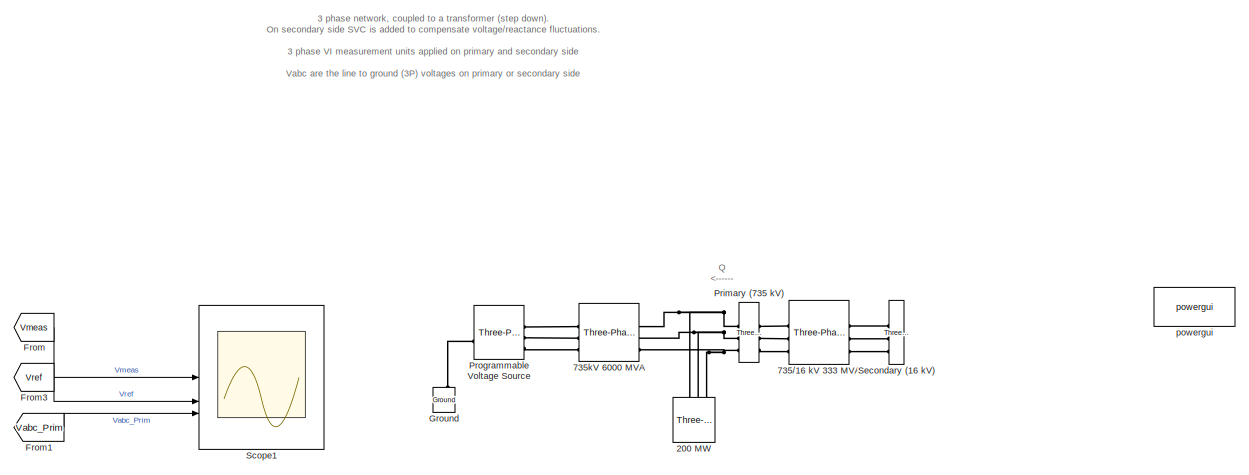
[diagram: root canvas - part 1/3, top center region]
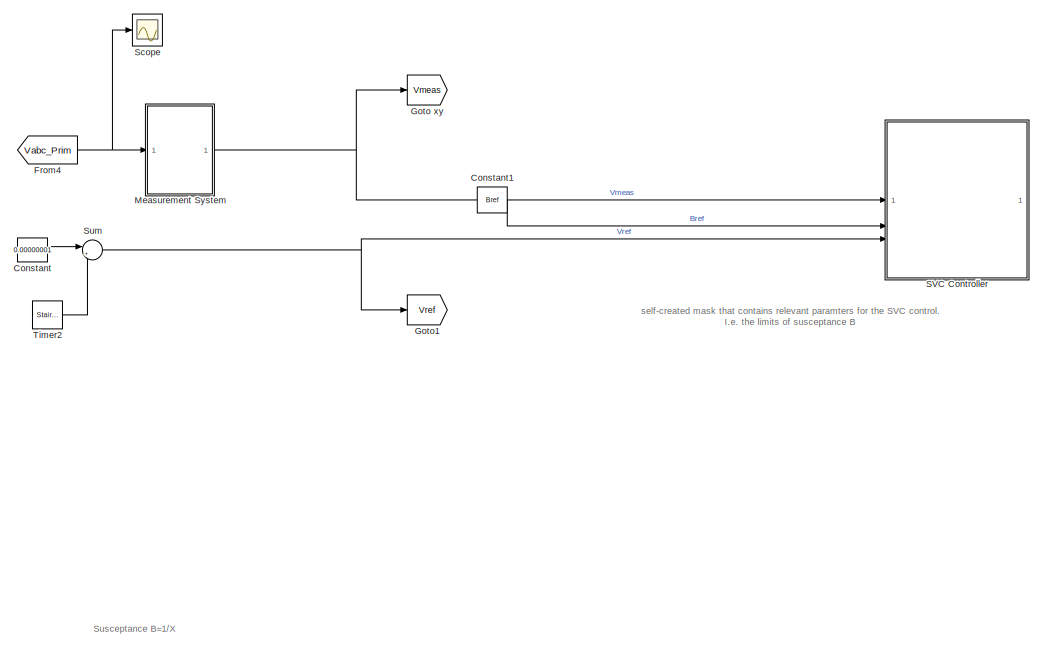
[diagram: root canvas - part 2/3, bottom right region]
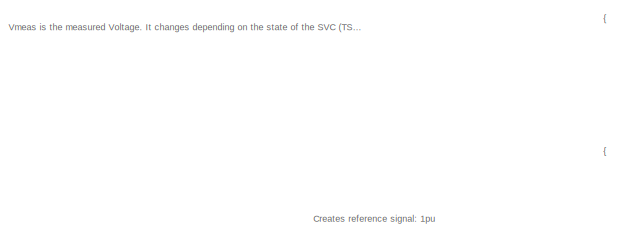
[diagram: root canvas - part 3/3, middle left region]
MODEL slx_26f8612f684e
KIND model
CONFIG AbsTol = auto
CONFIG EnableMultiTasking = off
CONFIG FixedStep = Ts
CONFIG MaxStep = auto
CONFIG MinStep = auto
CONFIG RelTol = 1e-3
CONFIG SampleTimeConstraint = Unconstrained
CONFIG SolverName = FixedStepDiscrete
CONFIG StartTime = 0.0
CONFIG StopTime = 0.6
WORKSPACE source: mxarray member
WORKSPACE Bcap: Simulink.Parameter (value not decoded)
WORKSPACE Bind: Simulink.Parameter (value not decoded)
WORKSPACE Bmax: Simulink.Parameter (value not decoded)
WORKSPACE Bmin: Simulink.Parameter (value not decoded)
WORKSPACE Bmmin_max = 0
WORKSPACE Bref = 0
WORKSPACE Ki: Simulink.Parameter (value not decoded)
WORKSPACE Kp: Simulink.Parameter (value not decoded)
WORKSPACE KpKi = 0
WORKSPACE OpMode = 1
WORKSPACE Ts = 5e-05
WORKSPACE Vref = 0
WORKSPACE Xs = 0
BLOCK [Reference] 200 MW  REF=spsThreePhaseSeriesRLCLoadLib/Three-Phase
Series RLC Load
  AttributesFormatString = \n
  NameLocation = left
  SourceBlock = spsThreePhaseSeriesRLCLoadLib/Three-Phase\nSeries RLC Load
  SourceType = Three-Phase Series RLC Load
BLOCK [Reference] 735//16 kV 333 MVA  REF=spsThreePhaseTransformerTwoWindingsLib/Three-Phase
Transformer
(Two Windings)
  AttributesFormatString = \n
  SourceBlock = spsThreePhaseTransformerTwoWindingsLib/Three-Phase\nTransformer\n(Two Windings)
  SourceType = Three-Phase Transformer (Two Windings)
BLOCK [Reference] 735kV 6000 MVA   REF=spsThreePhaseSeriesRLCBranchLib/Three-Phase
Series RLC Branch
  AttributesFormatString = \n
  SourceBlock = spsThreePhaseSeriesRLCBranchLib/Three-Phase\nSeries RLC Branch
  SourceType = Three-Phase Series RLC Branch
BLOCK [Constant] Constant
  Value = 0.00000001
BLOCK [Constant] Constant1
  Value = Bref
BLOCK [From] From
  GotoTag = Vmeas
  TagVisibility = global
BLOCK [From] From1
  GotoTag = Vabc_Prim
  TagVisibility = global
BLOCK [From] From3
  GotoTag = Vref
BLOCK [From] From4
  GotoTag = Vabc_Prim
  TagVisibility = global
BLOCK [Goto] Goto xy
  GotoTag = Vmeas
  TagVisibility = global
BLOCK [Goto] Goto1
  GotoTag = Vref
BLOCK [Reference] Ground  REF=spsGroundLib/Ground
  LibrarySourceBlock = sps_lib/Utilities/Ground
  NameLocation = right
  SourceBlock = spsGroundLib/Ground
  SourceType = Ground
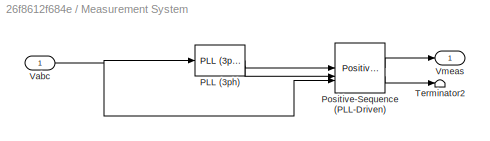
BLOCK [SubSystem] Measurement System
BLOCK [Reference] Measurement System/PLL (3ph)  REF=spsPLL3phLib/PLL
(3ph)
  SourceBlock = spsPLL3phLib/PLL\n(3ph)
  SourceType = PLL (3ph)
BLOCK [Reference] Measurement System/Positive-Sequence (PLL-Driven)  REF=spsPositiveSequencePLLDrivenLib/Positive-Sequence
(PLL-Driven)
  SourceBlock = spsPositiveSequencePLLDrivenLib/Positive-Sequence\n(PLL-Driven)
  SourceType = Positive-Sequence (PLL-Driven)
BLOCK [Terminator] Measurement System/Terminator2
BLOCK [Inport] Measurement System/Vabc
  PortDimensions = 3
BLOCK [Outport] Measurement System/Vmeas
  VectorParamsAs1DForOutWhenUnconnected = off
BLOCK [Reference] Primary (735 kV)  REF=spsThreePhaseVIMeasurementLib/Three-Phase
V-I Measurement
  SourceBlock = spsThreePhaseVIMeasurementLib/Three-Phase\nV-I Measurement
  SourceType = Three-Phase VI Measurement
BLOCK [Reference] Programmable Voltage Source  REF=spsThreePhaseProgrammableVoltageSourceLib/Three-Phase
Programmable
Voltage Source
  SourceBlock = spsThreePhaseProgrammableVoltageSourceLib/Three-Phase\nProgrammable\nVoltage Source
  SourceType = Three-Phase Programmable Voltage Source
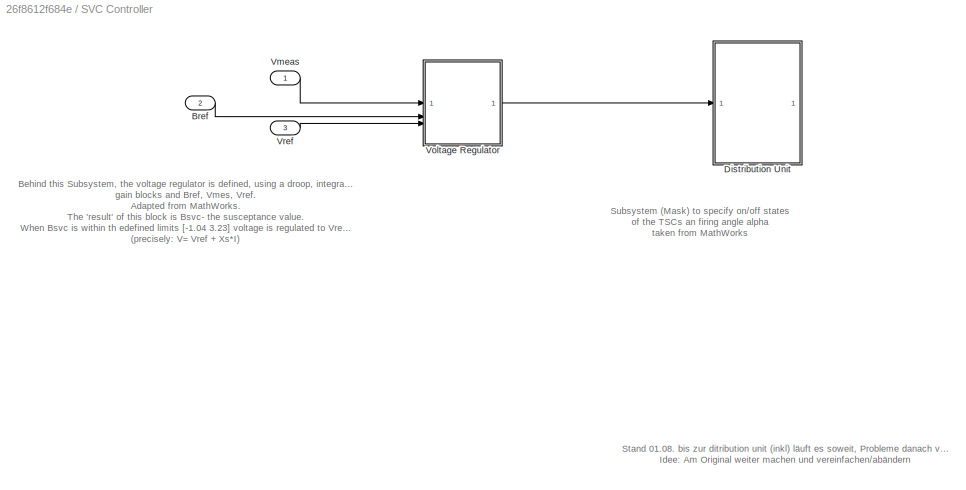
BLOCK [SubSystem] SVC Controller
  ShowPortLabels = SignalName
BLOCK [Inport] SVC Controller/Bref
  Port = 2
  PortDimensions = 1
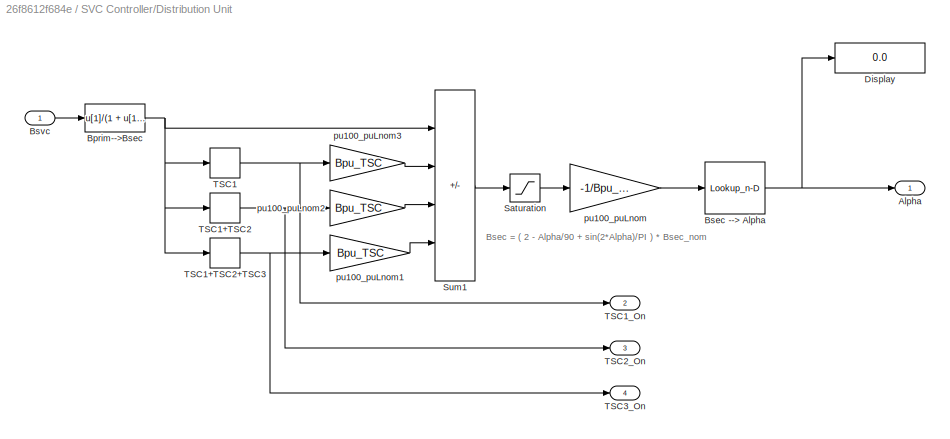
BLOCK [SubSystem] SVC Controller/Distribution Unit
BLOCK [Outport] SVC Controller/Distribution Unit/Alpha
  InitialOutput = 0
  VectorParamsAs1DForOutWhenUnconnected = off
BLOCK [Fcn] SVC Controller/Distribution Unit/Bprim-->Bsec
  Expr = u[1]/(1 + u[1]*Xf_xfo*100e6/Pnom_xfo)
BLOCK [Lookup_n-D] SVC Controller/Distribution Unit/Bsec --> Alpha
  BreakpointsForDimension1 = B
  BreakpointsForDimension2 = [0 571.55 685.8 800.15 914.4 1028.8 1143.1 1257.4 1371.7 1486 1600.3 1714.6 1828.9 1943.2 2057.5 2171.8 2286.1 2400.5 2514.7 2629.1 2743.3 2857.7 2971.9 3086.3 3200.5 3314.9 3429.2]
  InputPortMap = u0
  InternalRulePriority = Speed
  NumberOfTableDimensions = 1
  RndMeth = Simplest
  Table = A
BLOCK [Inport] SVC Controller/Distribution Unit/Bsvc
  PortDimensions = 1
BLOCK [Display] SVC Controller/Distribution Unit/Display
  Decimation = 1
BLOCK [Saturate] SVC Controller/Distribution Unit/Saturation
  LowerLimit = Bpu_TCR
  UpperLimit = 0
BLOCK [Sum] SVC Controller/Distribution Unit/Sum1
  IconShape = rectangular
  InputSameDT = on
  Inputs = +---
  OutDataTypeStr = Inherit: Same as first input
  SaturateOnIntegerOverflow = on
BLOCK [Relay] SVC Controller/Distribution Unit/TSC1
  OffSwitchValue = -1 * hyst_svc
  OnSwitchValue = 0
BLOCK [Relay] SVC Controller/Distribution Unit/TSC1+TSC2
  OffSwitchValue = -1 * hyst_svc + Bpu_TSC
  OnSwitchValue = 0+ Bpu_TSC
BLOCK [Relay] SVC Controller/Distribution Unit/TSC1+TSC2+TSC3
  OffSwitchValue = -1 * hyst_svc + 2*Bpu_TSC
  OnSwitchValue = 0+ 2*Bpu_TSC
BLOCK [Outport] SVC Controller/Distribution Unit/TSC1_On
  InitialOutput = 0
  Port = 2
  VectorParamsAs1DForOutWhenUnconnected = off
BLOCK [Outport] SVC Controller/Distribution Unit/TSC2_On
  InitialOutput = 0
  Port = 3
  VectorParamsAs1DForOutWhenUnconnected = off
BLOCK [Outport] SVC Controller/Distribution Unit/TSC3_On
  InitialOutput = 0
  Port = 4
  VectorParamsAs1DForOutWhenUnconnected = off
BLOCK [Gain] SVC Controller/Distribution Unit/pu100_puLnom
  Gain = -1/Bpu_TCR
  OutDataTypeStr = Inherit: Same as input
  ParamDataTypeStr = Inherit: Same as input
  SaturateOnIntegerOverflow = on
BLOCK [Gain] SVC Controller/Distribution Unit/pu100_puLnom1
  Gain = Bpu_TSC
  OutDataTypeStr = Inherit: Same as input
  ParamDataTypeStr = Inherit: Same as input
  SaturateOnIntegerOverflow = on
BLOCK [Gain] SVC Controller/Distribution Unit/pu100_puLnom2
  Gain = Bpu_TSC
  OutDataTypeStr = Inherit: Same as input
  ParamDataTypeStr = Inherit: Same as input
  SaturateOnIntegerOverflow = on
BLOCK [Gain] SVC Controller/Distribution Unit/pu100_puLnom3
  Gain = Bpu_TSC
  OutDataTypeStr = Inherit: Same as input
  ParamDataTypeStr = Inherit: Same as input
  SaturateOnIntegerOverflow = on
BLOCK [Inport] SVC Controller/Vmeas
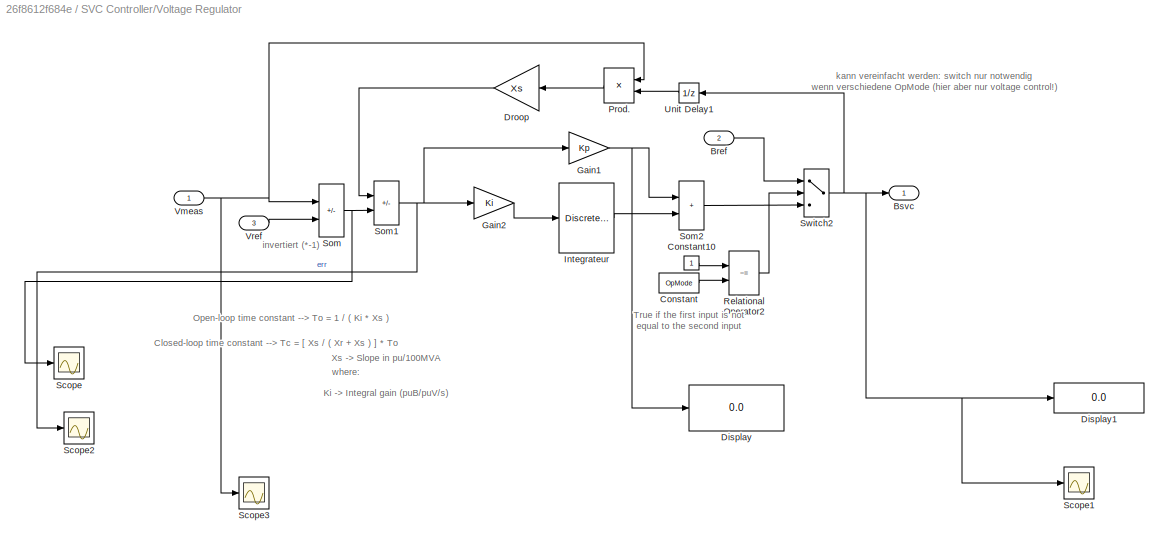
BLOCK [SubSystem] SVC Controller/Voltage Regulator
BLOCK [Inport] SVC Controller/Voltage Regulator/Bref
  Port = 2
  PortDimensions = 1
BLOCK [Outport] SVC Controller/Voltage Regulator/Bsvc
  InitialOutput = 0
  VectorParamsAs1DForOutWhenUnconnected = off
BLOCK [Constant] SVC Controller/Voltage Regulator/Constant
  Value = OpMode
BLOCK [Constant] SVC Controller/Voltage Regulator/Constant10
BLOCK [Display] SVC Controller/Voltage Regulator/Display
  Decimation = 1
BLOCK [Display] SVC Controller/Voltage Regulator/Display1
  Decimation = 1
  Format = long
BLOCK [Gain] SVC Controller/Voltage Regulator/Droop
  Gain = Xs
  NameLocation = top
  OutDataTypeStr = Inherit: Same as input
  ParamDataTypeStr = Inherit: Same as input
  SaturateOnIntegerOverflow = on
BLOCK [Gain] SVC Controller/Voltage Regulator/Gain1
  Gain = Kp
  OutDataTypeStr = Inherit: Same as input
  ParamDataTypeStr = Inherit: Same as input
  SaturateOnIntegerOverflow = on
BLOCK [Gain] SVC Controller/Voltage Regulator/Gain2
  Gain = Ki
  OutDataTypeStr = Inherit: Same as input
  ParamDataTypeStr = Inherit: Same as input
  SaturateOnIntegerOverflow = on
BLOCK [DiscreteIntegrator] SVC Controller/Voltage Regulator/Integrateur
  ICPrevOutput = DiscIntNeverNeededParam
  ICPrevScaledInput = DiscIntNeverNeededParam
  LimitOutput = on
  LowerSaturationLimit = Bind
  NameLocation = top
  SampleTime = Ts
  UpperSaturationLimit = Bcap
BLOCK [Product] SVC Controller/Voltage Regulator/Prod.
  InputSameDT = on
  OutDataTypeStr = Inherit: Same as first input
  SaturateOnIntegerOverflow = on
BLOCK [RelationalOperator] SVC Controller/Voltage Regulator/Relational Operator2
  Operator = ~=
BLOCK [Scope] SVC Controller/Voltage Regulator/Scope
  Floating = off
  NumInputPorts = 1
  ScopeSpecificationString = Simulink.scopes.TimeScopeBlockCfg('CurrentConfiguration', extmgr.ConfigurationSet(extmgr.Configuration('Core','General UI',true),extmgr.Configuration('Core','Source UI',true),extmgr.Configuration('Sources','WiredSimulink',true,'DataLoggingVariableName','ScopeData1'),extmgr.Configuration('Visuals','Time Domain',true,'SerializedDisplays',{struct('MinYLimReal','-0.03686','MaxYLimReal','0.08189','YLab...<+1486ch>
BLOCK [Scope] SVC Controller/Voltage Regulator/Scope1
  Floating = off
  NumInputPorts = 1
  ScopeSpecificationString = Simulink.scopes.TimeScopeBlockCfg('CurrentConfiguration', extmgr.ConfigurationSet(extmgr.Configuration('Core','General UI',true),extmgr.Configuration('Core','Source UI',true),extmgr.Configuration('Sources','WiredSimulink',true,'DataLoggingVariableName','ScopeData4'),extmgr.Configuration('Visuals','Time Domain',true,'SerializedDisplays',{struct('MinYLimReal','-1.57375','MaxYLimReal','3.76375','YLab...<+1455ch>
BLOCK [Scope] SVC Controller/Voltage Regulator/Scope2
  Floating = off
  NumInputPorts = 1
  ScopeSpecificationString = Simulink.scopes.TimeScopeBlockCfg('CurrentConfiguration', extmgr.ConfigurationSet(extmgr.Configuration('Core','General UI',true),extmgr.Configuration('Core','Source UI',true),extmgr.Configuration('Sources','WiredSimulink',true,'DataLoggingVariableName','ScopeData2'),extmgr.Configuration('Visuals','Time Domain',true,'SerializedDisplays',{struct('MinYLimReal','-0.03572','MaxYLimReal','0.08793','YLab...<+1486ch>
BLOCK [Scope] SVC Controller/Voltage Regulator/Scope3
  Floating = off
  NumInputPorts = 1
  ScopeSpecificationString = Simulink.scopes.TimeScopeBlockCfg('CurrentConfiguration', extmgr.ConfigurationSet(extmgr.Configuration('Core','General UI',true),extmgr.Configuration('Core','Source UI',true),extmgr.Configuration('Sources','WiredSimulink',true,'DataLoggingVariableName','ScopeData4'),extmgr.Configuration('Visuals','Time Domain',true,'SerializedDisplays',{struct('MinYLimReal','0.91811','MaxYLimReal','1.03686','YLabe...<+1451ch>
BLOCK [Sum] SVC Controller/Voltage Regulator/Som
  IconShape = rectangular
  InputSameDT = on
  Inputs = -+
  OutDataTypeStr = Inherit: Same as first input
  SaturateOnIntegerOverflow = on
BLOCK [Sum] SVC Controller/Voltage Regulator/Som1
  IconShape = rectangular
  InputSameDT = on
  Inputs = -+
  OutDataTypeStr = Inherit: Same as first input
  SaturateOnIntegerOverflow = on
BLOCK [Sum] SVC Controller/Voltage Regulator/Som2
  IconShape = rectangular
  InputSameDT = on
  OutDataTypeStr = Inherit: Same as first input
  SaturateOnIntegerOverflow = on
BLOCK [Switch] SVC Controller/Voltage Regulator/Switch2
  Criteria = u2 > Threshold
BLOCK [UnitDelay] SVC Controller/Voltage Regulator/Unit Delay1
  HasFrameUpgradeWarning = on
  SampleTime = Ts
BLOCK [Inport] SVC Controller/Voltage Regulator/Vmeas
  PortDimensions = 1
BLOCK [Inport] SVC Controller/Voltage Regulator/Vref
  Port = 3
BLOCK [Inport] SVC Controller/Vref
  Port = 3
BLOCK [Scope] Scope
  Floating = off
  NumInputPorts = 1
  ScopeSpecificationString = Simulink.scopes.TimeScopeBlockCfg('CurrentConfiguration', extmgr.ConfigurationSet(extmgr.Configuration('Core','General UI',true),extmgr.Configuration('Core','Source UI',true),extmgr.Configuration('Sources','WiredSimulink',true,'DataLoggingVariableName','ScopeData1'),extmgr.Configuration('Visuals','Time Domain',true,'SerializedDisplays',{struct('MinYLimReal','-1.28123','MaxYLimReal','1.28123','YLab...<+1583ch>
BLOCK [Scope] Scope1
  Floating = off
  NumInputPorts = 3
  ScopeSpecificationString = Simulink.scopes.TimeScopeBlockCfg('CurrentConfiguration', extmgr.ConfigurationSet(extmgr.Configuration('Core','General UI',true),extmgr.Configuration('Core','Source UI',true),extmgr.Configuration('Sources','WiredSimulink',true,'DataLoggingVariableName','ScopeData1'),extmgr.Configuration('Visuals','Time Domain',true,'SerializedDisplays',{struct('MinYLimReal','0.91811','MaxYLimReal','1.03686','YLabe...<+2259ch>
BLOCK [Reference] Secondary (16 kV)  REF=spsThreePhaseVIMeasurementLib/Three-Phase
V-I Measurement
  SourceBlock = spsThreePhaseVIMeasurementLib/Three-Phase\nV-I Measurement
  SourceType = Three-Phase VI Measurement
BLOCK [Sum] Sum
  Inputs = |++
  SaturateOnIntegerOverflow = on
BLOCK [Reference] Timer2  REF=spsStairGeneratorLib/Stair
Generator
  SourceBlock = spsStairGeneratorLib/Stair\nGenerator
  SourceType = Stair Generator
BLOCK [Reference] powergui  REF=sps_lib/powergui
  LibrarySourceBlock = sps_lib/powergui
  Priority = 1
  SourceBlock = sps_lib/powergui
  SourceType = PSB option menu block
ANNOTATION (root): 3 phase network, coupled to a transformer (step down). On secondary side SVC is added to compensate voltage/reactance fluctuations. 3 phase VI measurement units applied on primary and secondary side Vabc are the line to ground (3P) voltages on primary or secondary side
ANNOTATION (root): {
ANNOTATION (root): Creates reference signal: 1pu
ANNOTATION (root): Vmeas is the measured Voltage. It changes depending on the state of the SVC (TSC/TCR conducting?) and the "input" voltage (Vabc_Prim), which is changing twice and forces the SVC to "react" and go to a different operating point. Two voltage changes are defined within the programmable voltage source!
ANNOTATION (root): Q <------
ANNOTATION (root): Susceptance B=1/X
ANNOTATION (root): self-created mask that contains relevant paramters for the SVC control. I.e. the limits of susceptance B
ANNOTATION SVC Controller: Stand 01.08. bis zur ditribution unit (inkl) läuft es soweit, Probleme danach v.a mit Datentypen Idee: Am Original weiter machen und vereinfachen/abändern
ANNOTATION SVC Controller: Behind this Subsystem, the voltage regulator is defined, using a droop, integrator, gain blocks and Bref, Vmes, Vref. Adapted from MathWorks. The 'result' of this block is Bsvc- the susceptance value. When Bsvc is within th edefined limits [-1.04 3.23] voltage is regulated to Vref (precisely: V= Vref + Xs*I)
ANNOTATION SVC Controller: Subsystem (Mask) to specify on/off states of the TSCs an firing angle alpha taken from MathWorks
ANNOTATION SVC Controller/Distribution Unit: Bsec = ( 2 - Alpha/90 + sin(2*Alpha)/PI ) * Bsec_nom
ANNOTATION SVC Controller/Voltage Regulator: True if the first input is not equal to the second input
ANNOTATION SVC Controller/Voltage Regulator: Closed-loop time constant --> Tc = [ Xs / ( Xr + Xs ) ] * To
ANNOTATION SVC Controller/Voltage Regulator: Open-loop time constant --> To = 1 / ( Ki * Xs )
ANNOTATION SVC Controller/Voltage Regulator: Xs -> Slope in pu/100MVA Ki -> Integral gain (puB/puV/s)
ANNOTATION SVC Controller/Voltage Regulator: invertiert (*-1)
ANNOTATION SVC Controller/Voltage Regulator: kann vereinfacht werden: switch nur notwendig wenn verschiedene OpMode (hier aber nur voltage control!)
ANNOTATION SVC Controller/Voltage Regulator: where:
LINE Constant1:1 -> SVC Controller:2
LINE Constant:1 -> Sum:1
LINE From1:1 -> Scope1:3
LINE From3:1 -> Scope1:2
NET From4:1 -> Measurement System:1, Scope:1
LINE From:1 -> Scope1:1
LINE Measurement System/PLL (3ph):1 -> Measurement System/Positive-Sequence (PLL-Driven):1
LINE Measurement System/PLL (3ph):2 -> Measurement System/Positive-Sequence (PLL-Driven):2
LINE Measurement System/Positive-Sequence (PLL-Driven):1 -> Measurement System/Vmeas:1
LINE Measurement System/Positive-Sequence (PLL-Driven):2 -> Measurement System/Terminator2:1
NET Measurement System/Vabc:1 -> Measurement System/PLL (3ph):1, Measurement System/Positive-Sequence (PLL-Driven):3
NET Measurement System:1 -> Goto xy:1, SVC Controller:1
LINE SVC Controller/Bref:1 -> SVC Controller/Voltage Regulator:2
NET SVC Controller/Distribution Unit/Bprim-->Bsec:1 -> SVC Controller/Distribution Unit/Sum1:1, SVC Controller/Distribution Unit/TSC1+TSC2+TSC3:1, SVC Controller/Distribution Unit/TSC1+TSC2:1, SVC Controller/Distribution Unit/TSC1:1
NET SVC Controller/Distribution Unit/Bsec --> Alpha:1 -> SVC Controller/Distribution Unit/Alpha:1, SVC Controller/Distribution Unit/Display:1
LINE SVC Controller/Distribution Unit/Bsvc:1 -> SVC Controller/Distribution Unit/Bprim-->Bsec:1
LINE SVC Controller/Distribution Unit/Saturation:1 -> SVC Controller/Distribution Unit/pu100_puLnom:1
LINE SVC Controller/Distribution Unit/Sum1:1 -> SVC Controller/Distribution Unit/Saturation:1
NET SVC Controller/Distribution Unit/TSC1+TSC2+TSC3:1 -> SVC Controller/Distribution Unit/TSC3_On:1, SVC Controller/Distribution Unit/pu100_puLnom1:1
NET SVC Controller/Distribution Unit/TSC1+TSC2:1 -> SVC Controller/Distribution Unit/TSC2_On:1, SVC Controller/Distribution Unit/pu100_puLnom2:1
NET SVC Controller/Distribution Unit/TSC1:1 -> SVC Controller/Distribution Unit/TSC1_On:1, SVC Controller/Distribution Unit/pu100_puLnom3:1
LINE SVC Controller/Distribution Unit/pu100_puLnom1:1 -> SVC Controller/Distribution Unit/Sum1:4
LINE SVC Controller/Distribution Unit/pu100_puLnom2:1 -> SVC Controller/Distribution Unit/Sum1:3
LINE SVC Controller/Distribution Unit/pu100_puLnom3:1 -> SVC Controller/Distribution Unit/Sum1:2
LINE SVC Controller/Distribution Unit/pu100_puLnom:1 -> SVC Controller/Distribution Unit/Bsec --> Alpha:1
LINE SVC Controller/Vmeas:1 -> SVC Controller/Voltage Regulator:1
LINE SVC Controller/Voltage Regulator/Bref:1 -> SVC Controller/Voltage Regulator/Switch2:1
LINE SVC Controller/Voltage Regulator/Constant10:1 -> SVC Controller/Voltage Regulator/Relational Operator2:1
LINE SVC Controller/Voltage Regulator/Constant:1 -> SVC Controller/Voltage Regulator/Relational Operator2:2
LINE SVC Controller/Voltage Regulator/Droop:1 -> SVC Controller/Voltage Regulator/Som1:1
NET SVC Controller/Voltage Regulator/Gain1:1 -> SVC Controller/Voltage Regulator/Display:1, SVC Controller/Voltage Regulator/Som2:1
LINE SVC Controller/Voltage Regulator/Gain2:1 -> SVC Controller/Voltage Regulator/Integrateur:1
LINE SVC Controller/Voltage Regulator/Integrateur:1 -> SVC Controller/Voltage Regulator/Som2:2
LINE SVC Controller/Voltage Regulator/Prod.:1 -> SVC Controller/Voltage Regulator/Droop:1
LINE SVC Controller/Voltage Regulator/Relational Operator2:1 -> SVC Controller/Voltage Regulator/Switch2:2
NET SVC Controller/Voltage Regulator/Som1:1 -> SVC Controller/Voltage Regulator/Gain1:1, SVC Controller/Voltage Regulator/Gain2:1, SVC Controller/Voltage Regulator/Scope2:1
LINE SVC Controller/Voltage Regulator/Som2:1 -> SVC Controller/Voltage Regulator/Switch2:3
NET SVC Controller/Voltage Regulator/Som:1 -> SVC Controller/Voltage Regulator/Scope:1, SVC Controller/Voltage Regulator/Som1:2
NET SVC Controller/Voltage Regulator/Switch2:1 -> SVC Controller/Voltage Regulator/Bsvc:1, SVC Controller/Voltage Regulator/Display1:1, SVC Controller/Voltage Regulator/Scope1:1, SVC Controller/Voltage Regulator/Unit Delay1:1
LINE SVC Controller/Voltage Regulator/Unit Delay1:1 -> SVC Controller/Voltage Regulator/Prod.:2
NET SVC Controller/Voltage Regulator/Vmeas:1 -> SVC Controller/Voltage Regulator/Prod.:1, SVC Controller/Voltage Regulator/Scope3:1, SVC Controller/Voltage Regulator/Som:1
LINE SVC Controller/Voltage Regulator/Vref:1 -> SVC Controller/Voltage Regulator/Som:2
LINE SVC Controller/Voltage Regulator:1 -> SVC Controller/Distribution Unit:1
LINE SVC Controller/Vref:1 -> SVC Controller/Voltage Regulator:3
NET Sum:1 -> Goto1:1, SVC Controller:3
LINE Timer2:1 -> Sum:2
PNET net1: 200 MW:LConn1 -- 735kV 6000 MVA :RConn1 -- Primary (735 kV):LConn1
PNET net2: 200 MW:LConn2 -- 735kV 6000 MVA :RConn2 -- Primary (735 kV):LConn2
PNET net3: 200 MW:LConn3 -- 735kV 6000 MVA :RConn3 -- Primary (735 kV):LConn3
PLINE 735//16 kV 333 MVA:LConn1 -- Primary (735 kV):RConn1
PLINE 735//16 kV 333 MVA:LConn2 -- Primary (735 kV):RConn2
PLINE 735//16 kV 333 MVA:LConn3 -- Primary (735 kV):RConn3
PLINE 735//16 kV 333 MVA:RConn1 -- Secondary (16 kV):LConn1
PLINE 735//16 kV 333 MVA:RConn2 -- Secondary (16 kV):LConn2
PLINE 735//16 kV 333 MVA:RConn3 -- Secondary (16 kV):LConn3
PLINE 735kV 6000 MVA :LConn1 -- Programmable Voltage Source:RConn1
PLINE 735kV 6000 MVA :LConn2 -- Programmable Voltage Source:RConn2
PLINE 735kV 6000 MVA :LConn3 -- Programmable Voltage Source:RConn3
PLINE Ground:LConn1 -- Programmable Voltage Source:LConn1
note: NET lines group one-source signal fan-out (src -> all destinations, sorted); 1:1 wires keep LINE; PNET lines group multi-terminal physical nets as a canonical sorted terminal list (undirected conserving connections); 2-terminal nets keep the pairwise PLINE form
